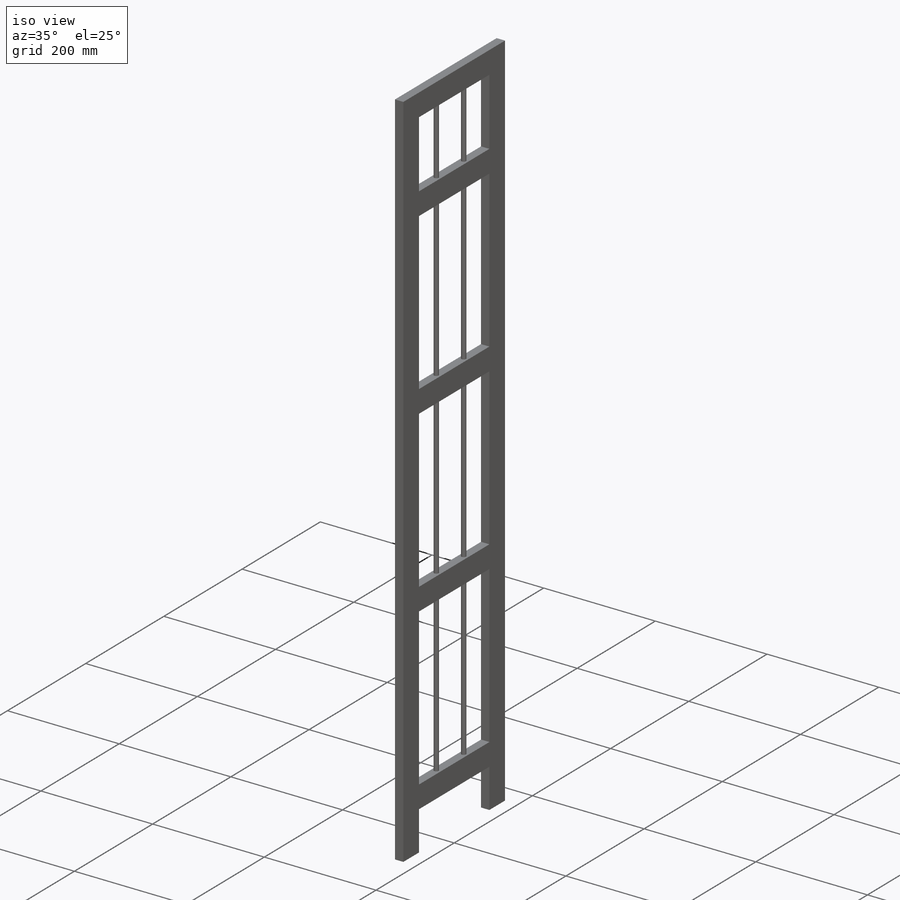
[diagram: iso view]
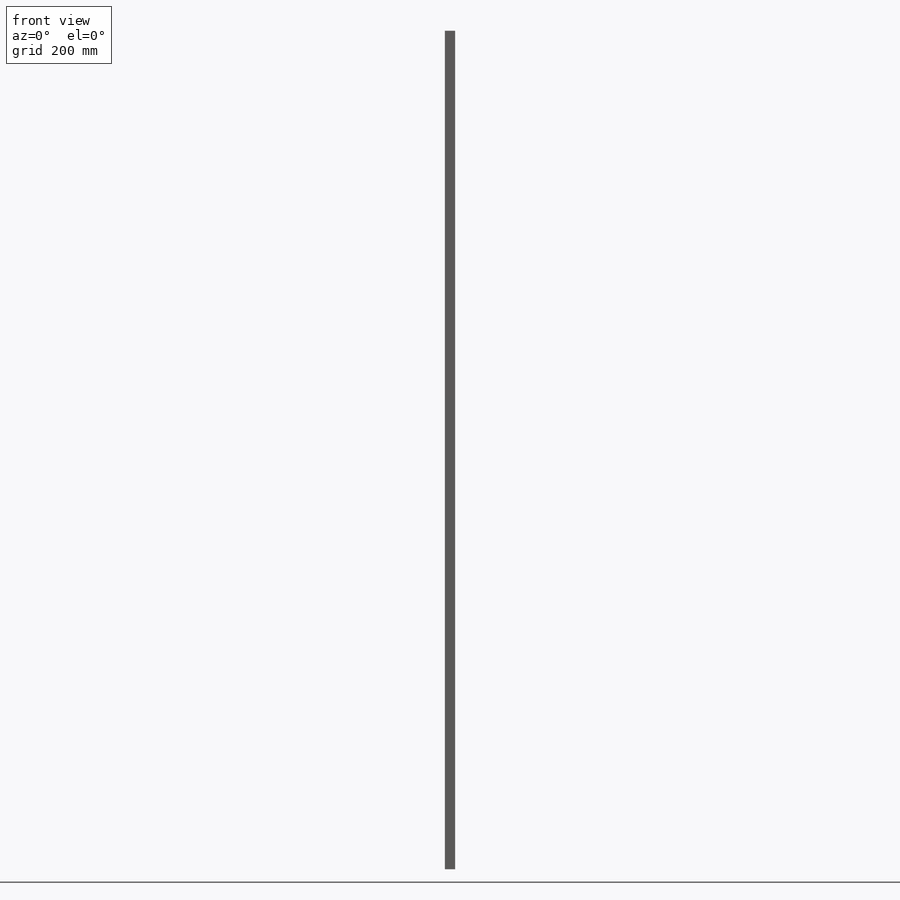
[diagram: front view]
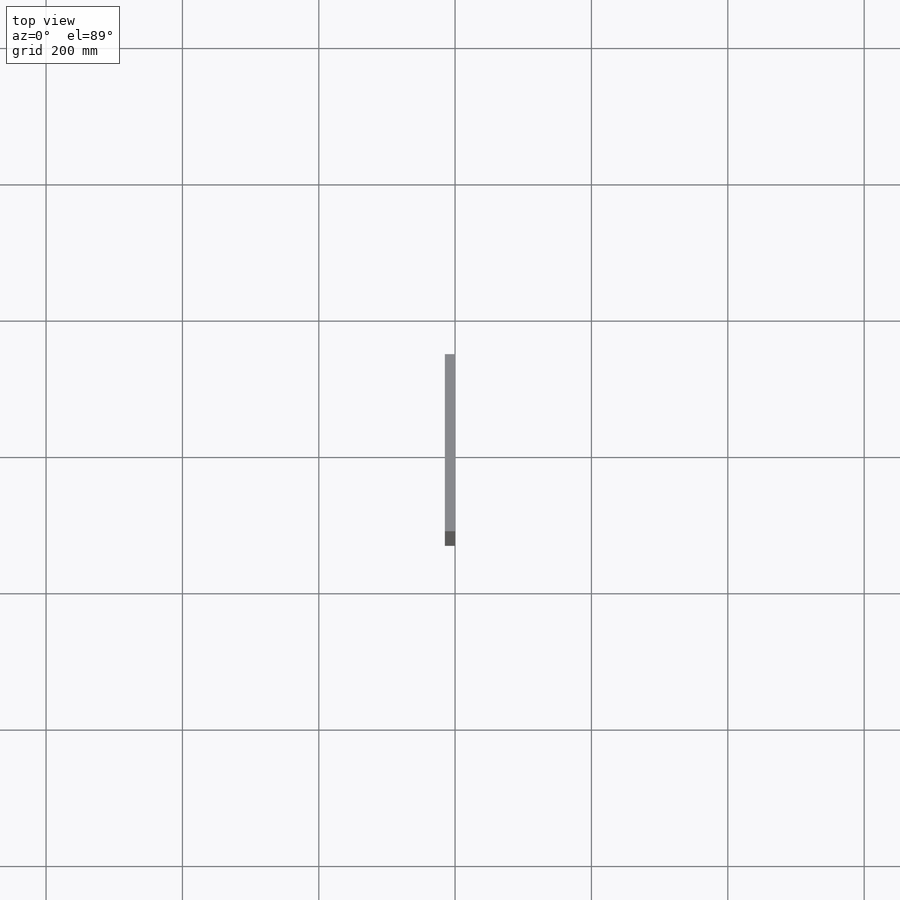
[diagram: top view]
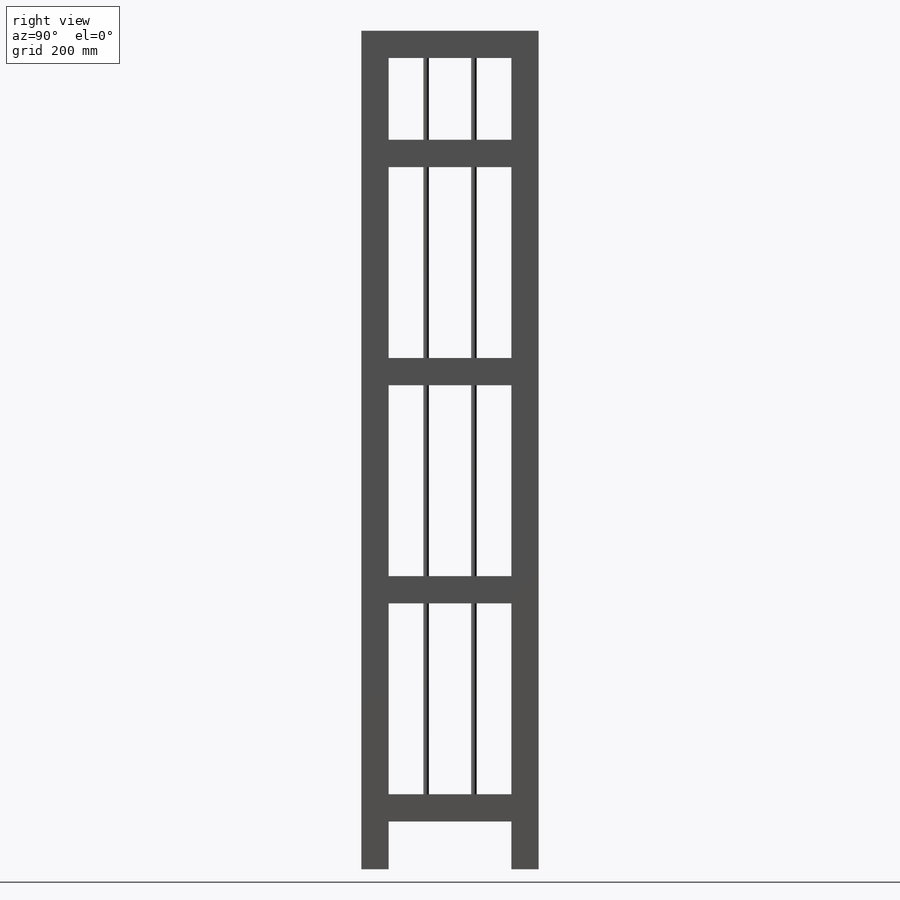
[diagram: right view]
SOLIDWORKS PART (.sldprt)
format: sldprt  version: not decoded by parser v0  size: 311,808 bytes
history: native  units: mm
features: plane x3, sketch x3, extrude x3, material x1, pattern_linear x1, mirror x1 (+9 scaffold rows collapsed)
feature tree (21):
  scaffold x9  (default folders/planes/origin — collapsed)
  material  "柚木"
  plane  "前视基准面"
  plane  "上视基准面"
  plane  "右视基准面"
  sketch  "草图1"  dims[c1.D1=~98.159152mm c1.D2=~64.956487mm c2.D1=1230.0mm c2.D2=260.0mm c2.D3=260.0mm c2.D4=40.0mm c3.D3=40.0mm]
  extrude  "凸台-拉伸1"  Depth=15mm
  sketch  "草图2"  dims[c1.D1=~35.156695mm c1.D2=180.0mm c2.D1=40.0mm c2.D2=180.0mm c2.D3=110.0mm]
  extrude  "凸台-拉伸2"  [1 undecoded]
  pattern_linear  "阵列(线性)1"  Count1=4 Count2=1 Spacing1=320mm Spacing2=10mm
  sketch  "草图3"  dims[D1=~33.996105mm D2=70.0mm]
  extrude  "凸台-拉伸3"  [1 undecoded]
  mirror  "镜向1"
decode coverage: 5 of 8 modeling features carry decoded parameters
note: ~ marks probable driven/reference dimensions
note: 2 parameter values undecoded
note: suppression state not decoded; provenance and decode notes live in map.json
